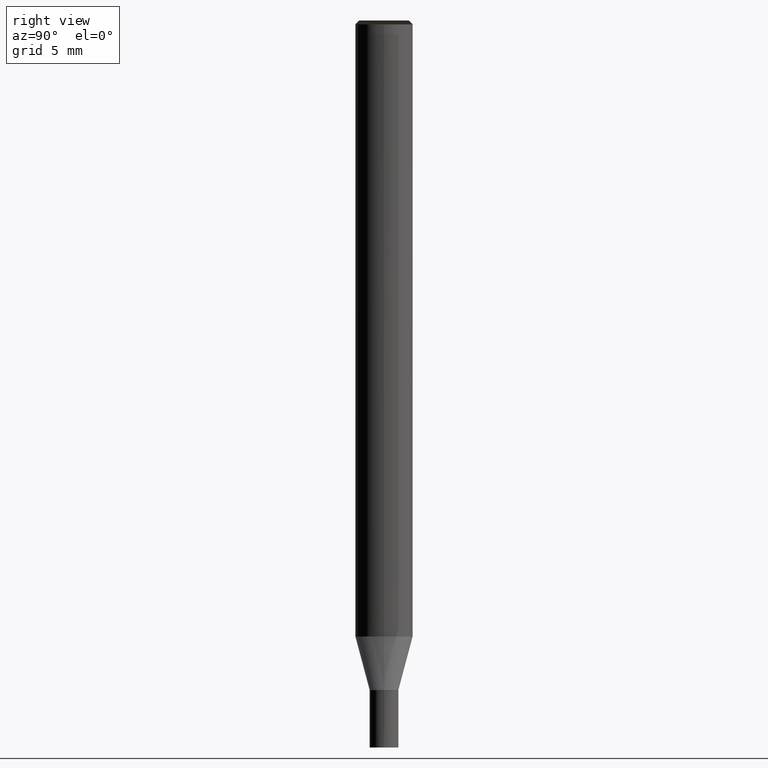
[diagram: clean part render]
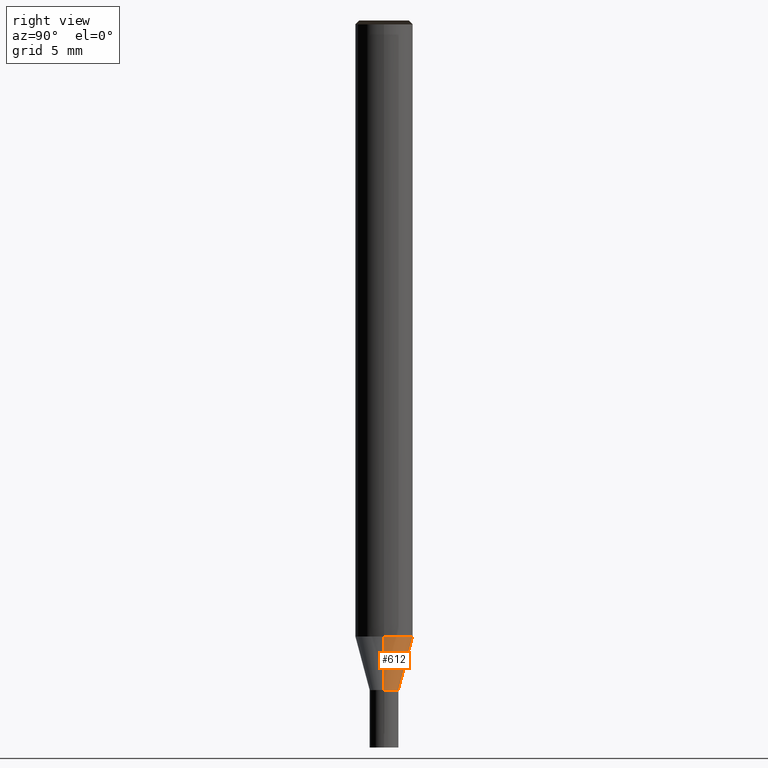
[diagram: same view with one face highlighted and labeled with its STEP entity id]
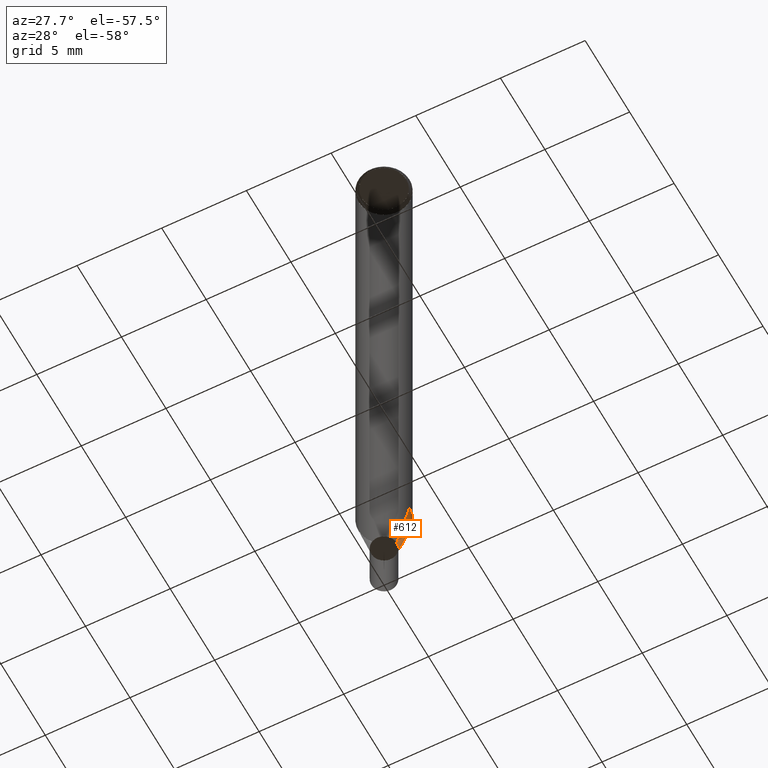
[diagram: same view with one face highlighted and labeled with its STEP entity id]
A machine part, right view. The second image highlights one B-rep face of the part: STEP entity #612.
A second angle (auxiliary view) of the same face is appended — the face is thin or edge-on in the first view.
In plain terms, the highlighted face is a freeform B-spline surface patch.
Its self-contained STEP definition (entity closure, byte-faithful):
#410=CARTESIAN_POINT('',(0.75,0.0,-2.799038105677));
#411=CARTESIAN_POINT('',(0.75,0.75,-2.799038105677));
#412=CARTESIAN_POINT('',(0.0,0.75,-2.799038105677));
#413=CARTESIAN_POINT('',(-0.75,0.75,-2.799038105677));
#414=CARTESIAN_POINT('',(-0.75,0.0,-2.799038105677));
#415=CARTESIAN_POINT('',(1.5,0.0,0.0));
#416=CARTESIAN_POINT('',(1.5,1.5,0.0));
#417=CARTESIAN_POINT('',(0.0,1.5,0.0));
#418=CARTESIAN_POINT('',(-1.5,1.5,0.0));
#419=CARTESIAN_POINT('',(-1.5,0.0,0.0));
#593=(
BOUNDED_SURFACE()
B_SPLINE_SURFACE(1,2,(
(#410,#411,#412,#413,#414),
(#415,#416,#417,#418,#419)
), .UNSPECIFIED.,.F.,.F.,.F.)
B_SPLINE_SURFACE_WITH_KNOTS((2,2),(3,2,3),(
0.0,1.0),(
0.0,0.5,1.0), .UNSPECIFIED.)
GEOMETRIC_REPRESENTATION_ITEM()
RATIONAL_B_SPLINE_SURFACE(((1.0,0.707106781187,1.0,0.707106781187,1.0),
(1.0,0.707106781187,1.0,0.707106781187,1.0)
))
REPRESENTATION_ITEM('')
SURFACE()
);
#594=(
BOUNDED_CURVE()
B_SPLINE_CURVE(2,(#414,#413,#412,#411,#410),.UNSPECIFIED.,.F.,.F.)
B_SPLINE_CURVE_WITH_KNOTS((3,2,3),
(0.0,0.5,1.0),.UNSPECIFIED.)
CURVE()
GEOMETRIC_REPRESENTATION_ITEM()
RATIONAL_B_SPLINE_CURVE((1.0,0.707106781187,1.0,0.707106781187,1.0))
REPRESENTATION_ITEM('')
);
#595=(
BOUNDED_CURVE()
B_SPLINE_CURVE(1,(#410,#415),.UNSPECIFIED.,.F.,.F.)
B_SPLINE_CURVE_WITH_KNOTS((2,2),
(0.0,1.0),.UNSPECIFIED.)
CURVE()
GEOMETRIC_REPRESENTATION_ITEM()
RATIONAL_B_SPLINE_CURVE((1.0,1.0))
REPRESENTATION_ITEM('')
);
#596=(
BOUNDED_CURVE()
B_SPLINE_CURVE(2,(#415,#416,#417,#418,#419),.UNSPECIFIED.,.F.,.F.)
B_SPLINE_CURVE_WITH_KNOTS((3,2,3),
(0.0,0.5,1.0),.UNSPECIFIED.)
CURVE()
GEOMETRIC_REPRESENTATION_ITEM()
RATIONAL_B_SPLINE_CURVE((1.0,0.707106781187,1.0,0.707106781187,1.0))
REPRESENTATION_ITEM('')
);
#597=(
BOUNDED_CURVE()
B_SPLINE_CURVE(1,(#419,#414),.UNSPECIFIED.,.F.,.F.)
B_SPLINE_CURVE_WITH_KNOTS((2,2),
(0.0,1.0),.UNSPECIFIED.)
CURVE()
GEOMETRIC_REPRESENTATION_ITEM()
RATIONAL_B_SPLINE_CURVE((1.0,1.0))
REPRESENTATION_ITEM('')
);
#598=VERTEX_POINT('',#410);
#599=VERTEX_POINT('',#414);
#600=VERTEX_POINT('',#415);
#601=VERTEX_POINT('',#419);
#602=EDGE_CURVE('',#599,#598,#594,.T.);
#603=EDGE_CURVE('',#598,#600,#595,.T.);
#604=EDGE_CURVE('',#600,#601,#596,.T.);
#605=EDGE_CURVE('',#601,#599,#597,.T.);
#606=ORIENTED_EDGE('',*,*,#602,.T.);
#607=ORIENTED_EDGE('',*,*,#603,.T.);
#608=ORIENTED_EDGE('',*,*,#604,.T.);
#609=ORIENTED_EDGE('',*,*,#605,.T.);
#610=EDGE_LOOP('',(#606,#607,#608,#609));
#611=FACE_OUTER_BOUND('',#610,.T.);
#612=ADVANCED_FACE('',(#611),#593,.T.);